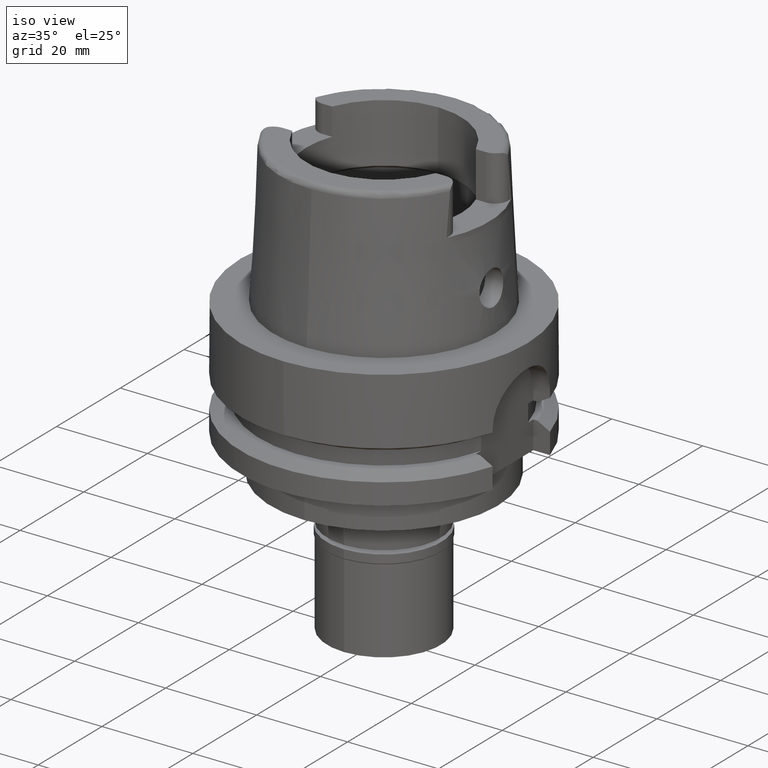
[diagram: clean part render]
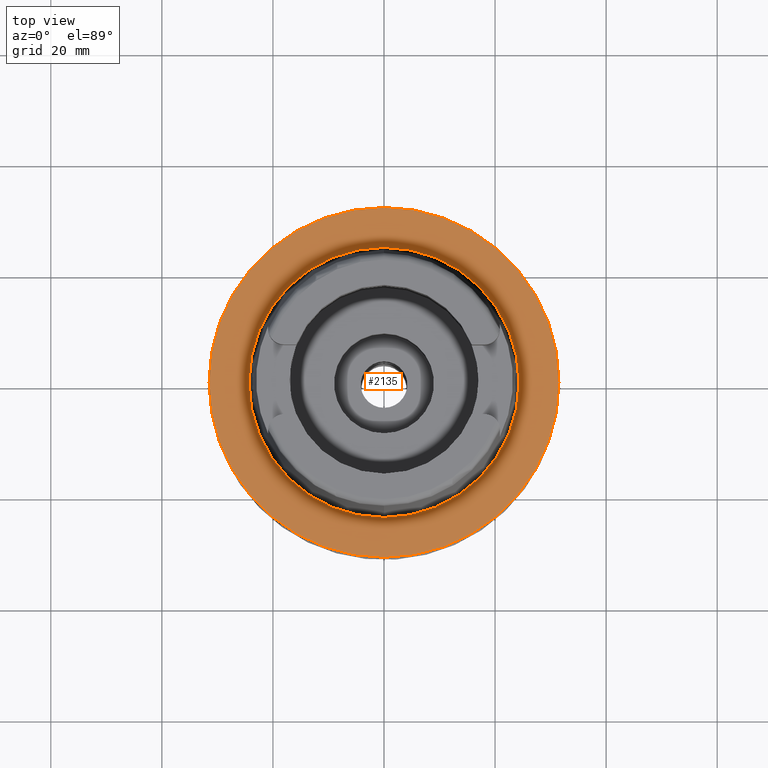
[diagram: tour spotlight — one face highlighted and labeled with its STEP entity id]
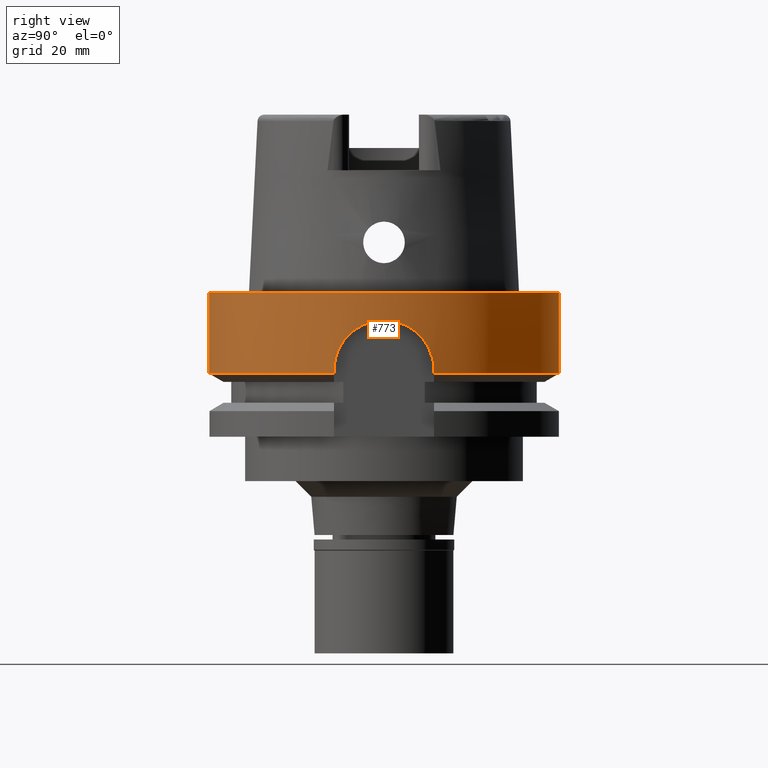
[diagram: tour spotlight — one face highlighted and labeled with its STEP entity id]
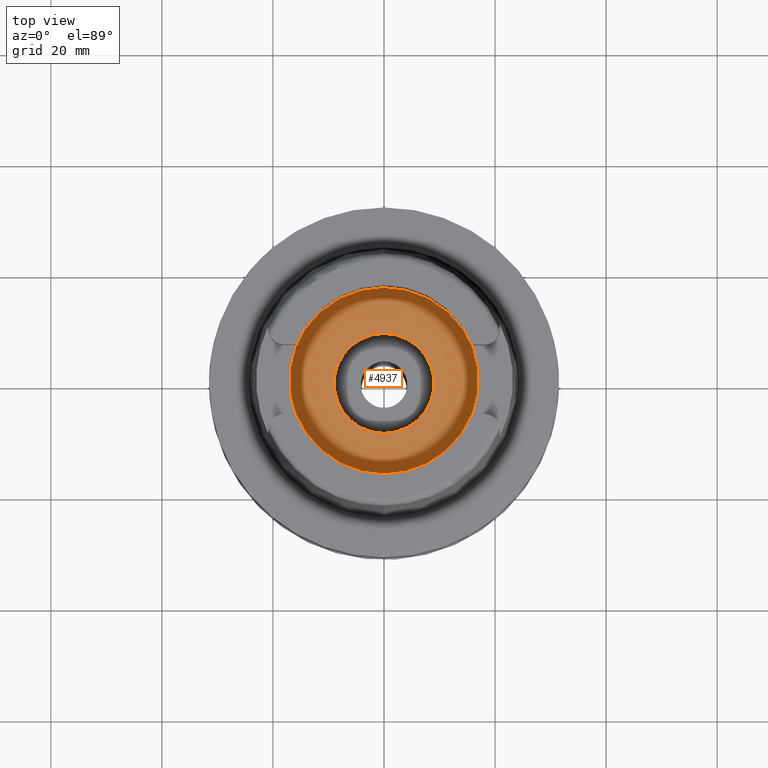
[diagram: tour spotlight — one face highlighted and labeled with its STEP entity id]
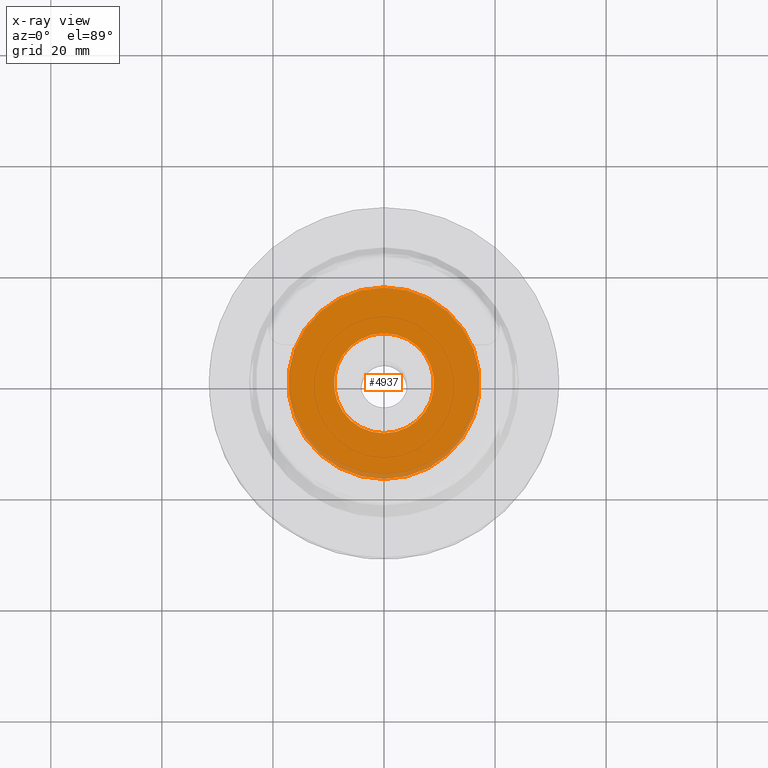
[diagram: x-ray of the same camera — body ghosted, this tour face saturated]
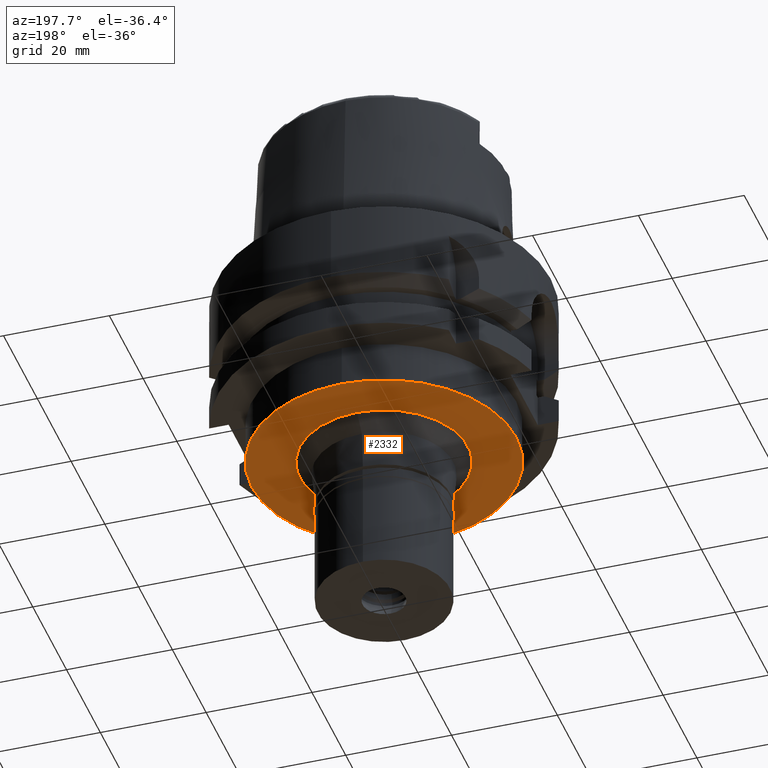
[diagram: tour spotlight — one face highlighted and labeled with its STEP entity id]
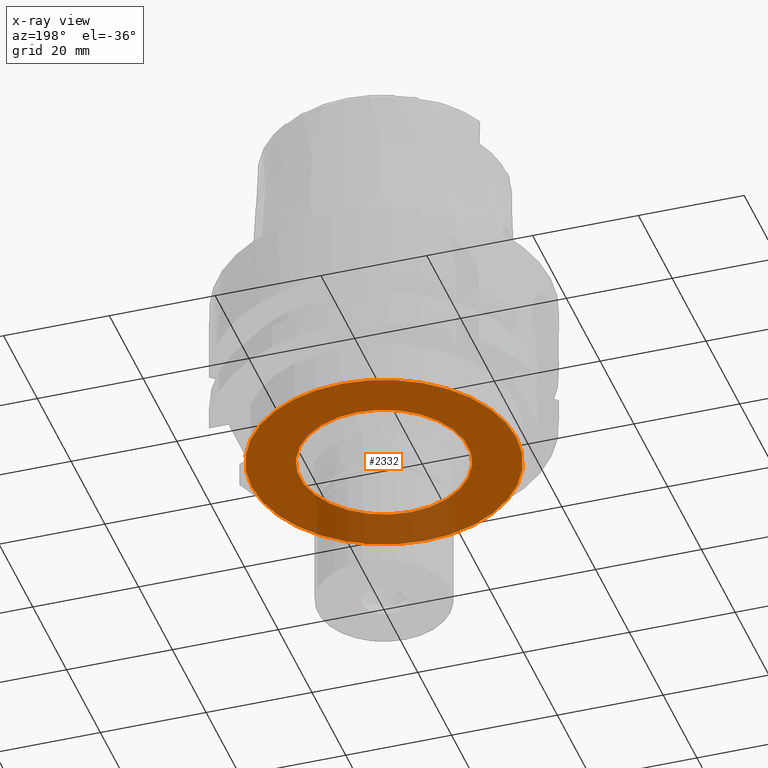
[diagram: x-ray of the same camera — body ghosted, this tour face saturated]
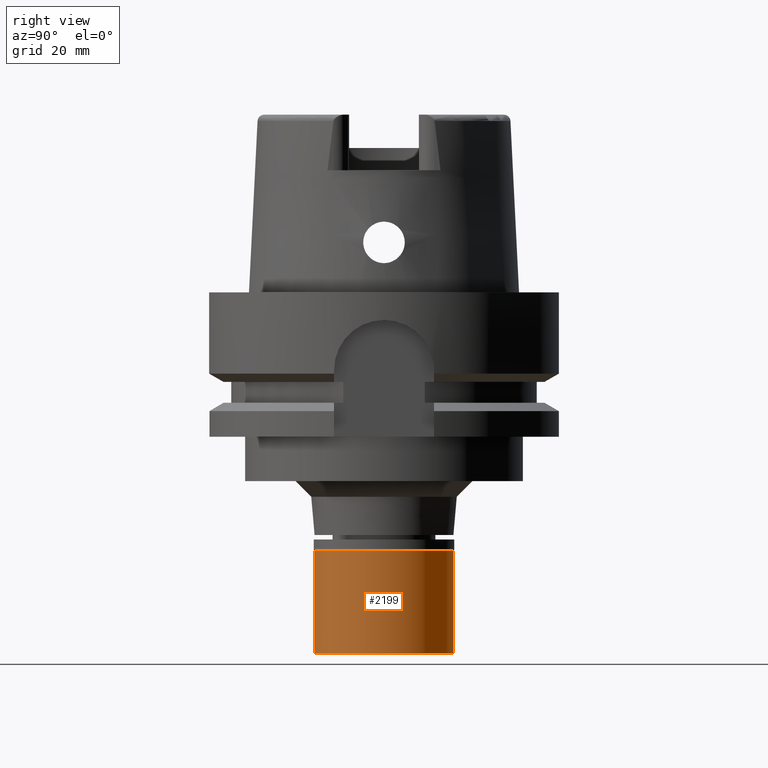
[diagram: tour spotlight — one face highlighted and labeled with its STEP entity id]
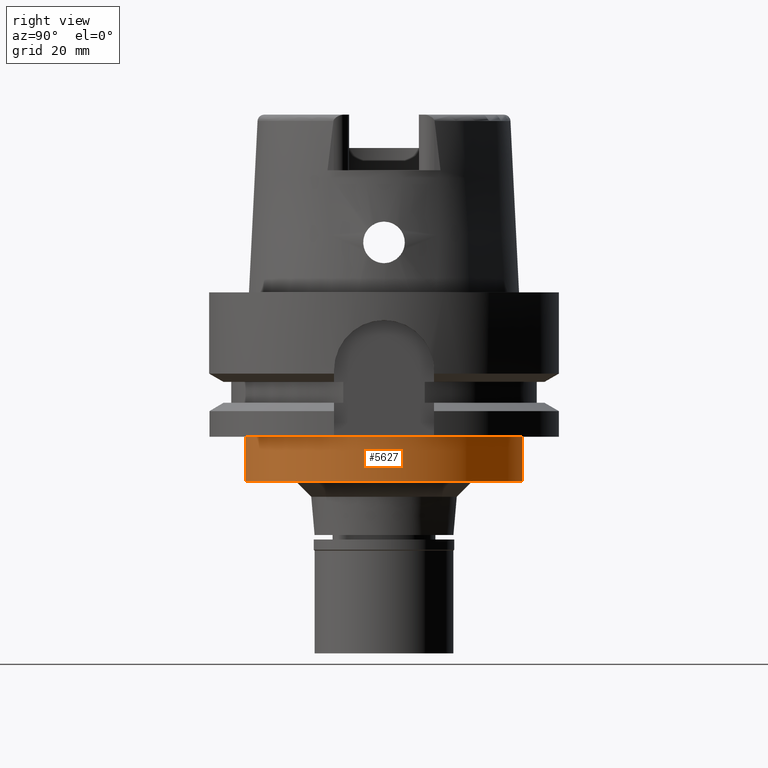
[diagram: tour spotlight — one face highlighted and labeled with its STEP entity id]
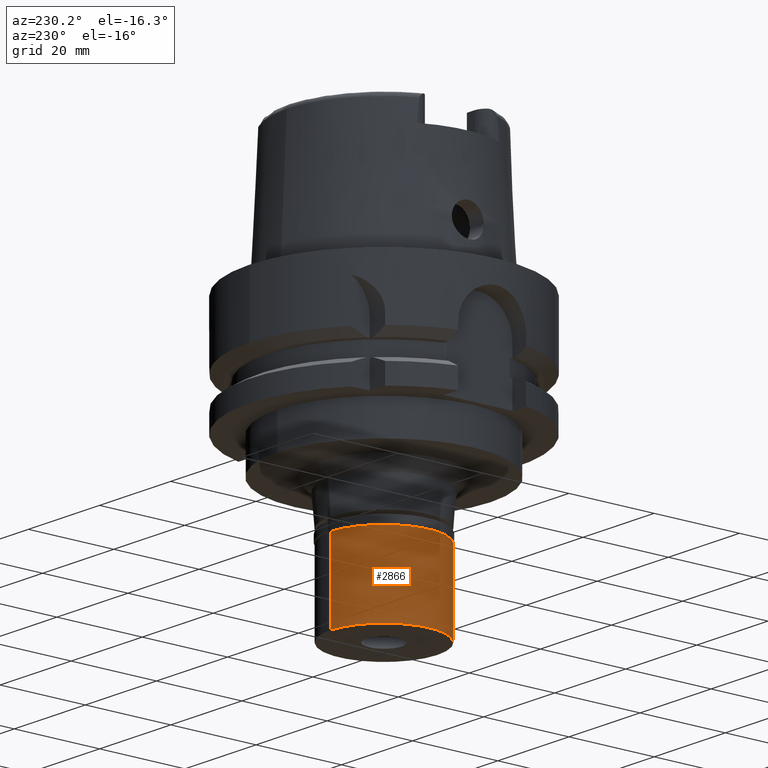
[diagram: tour spotlight — one face highlighted and labeled with its STEP entity id]
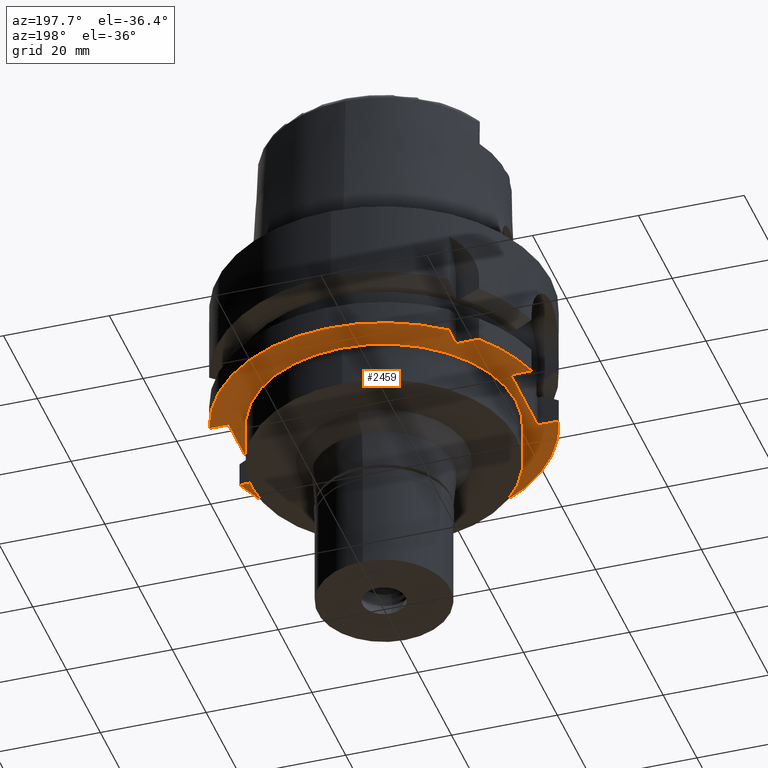
[diagram: tour spotlight — one face highlighted and labeled with its STEP entity id]
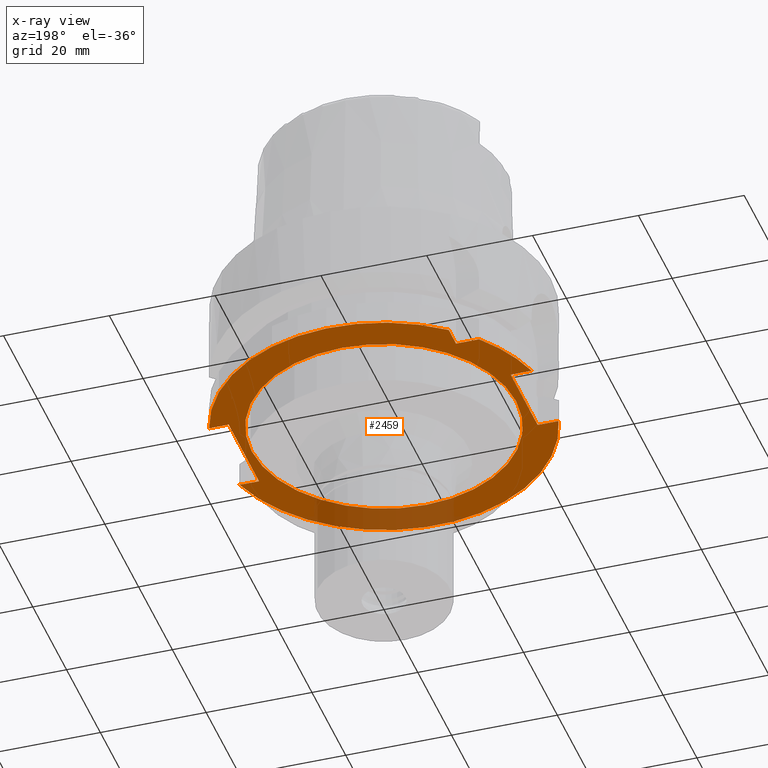
[diagram: x-ray of the same camera — body ghosted, this tour face saturated]
A machine part: a face-by-face anatomy tour. The part has 126 B-rep faces; the first image is the clean iso view, then the 8 largest visible faces are spotlighted one at a time (largest first), each with its STEP entity span.

Face 1 — top view, entity #2135. In plain terms, the highlighted planar face has unit normal (0, 0, 1).
Definition (entity closure, byte-faithful):
#98 = DIRECTION ( 'NONE',  ( 0.0000000000000000000, -1.000000000000000000, 0.0000000000000000000 ) ) ;
#140 = EDGE_CURVE ( 'NONE', #5423, #2358, #3981, .T. ) ;
#178 = CARTESIAN_POINT ( 'NONE',  ( 0.0000000000000000000, 31.50000000000000000, 0.0000000000000000000 ) ) ;
#748 = AXIS2_PLACEMENT_3D ( 'NONE', #3094, #3061, #3524 ) ;
#884 = ORIENTED_EDGE ( 'NONE', *, *, #4067, .F. ) ;
#928 = DIRECTION ( 'NONE',  ( 0.0000000000000000000, 0.0000000000000000000, 1.000000000000000000 ) ) ;
#1220 = ORIENTED_EDGE ( 'NONE', *, *, #140, .F. ) ;
#1385 = AXIS2_PLACEMENT_3D ( 'NONE', #4356, #2177, #3911 ) ;
#1595 = EDGE_CURVE ( 'NONE', #2007, #4152, #5279, .T. ) ;
#1746 = CIRCLE ( 'NONE', #1385, 24.31503482328999866 ) ;
#2007 = VERTEX_POINT ( 'NONE', #3166 ) ;
#2070 = EDGE_LOOP ( 'NONE', ( #4677, #884 ) ) ;
#2135 = ADVANCED_FACE ( 'NONE', ( #4897, #5300 ), #3132, .T. ) ;
#2177 = DIRECTION ( 'NONE',  ( 0.0000000000000000000, 0.0000000000000000000, 1.000000000000000000 ) ) ;
#2180 = CARTESIAN_POINT ( 'NONE',  ( 0.0000000000000000000, 0.0000000000000000000, 0.0000000000000000000 ) ) ;
#2358 = VERTEX_POINT ( 'NONE', #178 ) ;
#2521 = EDGE_LOOP ( 'NONE', ( #3995, #1220 ) ) ;
#2675 = DIRECTION ( 'NONE',  ( 1.000000000000000000, 0.0000000000000000000, 0.0000000000000000000 ) ) ;
#2698 = CARTESIAN_POINT ( 'NONE',  ( 0.0000000000000000000, 0.0000000000000000000, 0.0000000000000000000 ) ) ;
#2771 = CARTESIAN_POINT ( 'NONE',  ( 0.0000000000000000000, -31.50000000000000000, 0.0000000000000000000 ) ) ;
#3061 = DIRECTION ( 'NONE',  ( 0.0000000000000000000, 0.0000000000000000000, -1.000000000000000000 ) ) ;
#3094 = CARTESIAN_POINT ( 'NONE',  ( 0.0000000000000000000, 0.0000000000000000000, 0.0000000000000000000 ) ) ;
#3132 = PLANE ( 'NONE',  #4549 ) ;
#3166 = CARTESIAN_POINT ( 'NONE',  ( 0.0000000000000000000, 24.31503482328999866, -1.705302565823999926E-12 ) ) ;
#3315 = DIRECTION ( 'NONE',  ( 0.0000000000000000000, 0.0000000000000000000, 1.000000000000000000 ) ) ;
#3524 = DIRECTION ( 'NONE',  ( 0.0000000000000000000, 1.000000000000000000, 0.0000000000000000000 ) ) ;
#3911 = DIRECTION ( 'NONE',  ( 0.0000000000000000000, -1.000000000000000000, 0.0000000000000000000 ) ) ;
#3981 = CIRCLE ( 'NONE', #5178, 31.50000000000000000 ) ;
#3995 = ORIENTED_EDGE ( 'NONE', *, *, #5172, .F. ) ;
#4067 = EDGE_CURVE ( 'NONE', #4152, #2007, #1746, .T. ) ;
#4152 = VERTEX_POINT ( 'NONE', #4655 ) ;
#4356 = CARTESIAN_POINT ( 'NONE',  ( 0.0000000000000000000, 0.0000000000000000000, -1.705302565823999926E-12 ) ) ;
#4405 = CIRCLE ( 'NONE', #748, 31.50000000000000000 ) ;
#4422 = DIRECTION ( 'NONE',  ( 0.0000000000000000000, 0.0000000000000000000, -1.000000000000000000 ) ) ;
#4549 = AXIS2_PLACEMENT_3D ( 'NONE', #2180, #928, #2675 ) ;
#4655 = CARTESIAN_POINT ( 'NONE',  ( 0.0000000000000000000, -24.31503482328999866, -9.841016890276999833E-13 ) ) ;
#4677 = ORIENTED_EDGE ( 'NONE', *, *, #1595, .F. ) ;
#4813 = AXIS2_PLACEMENT_3D ( 'NONE', #5451, #3315, #5051 ) ;
#4897 = FACE_OUTER_BOUND ( 'NONE', #2521, .T. ) ;
#5051 = DIRECTION ( 'NONE',  ( 0.0000000000000000000, 1.000000000000000000, 0.0000000000000000000 ) ) ;
#5172 = EDGE_CURVE ( 'NONE', #2358, #5423, #4405, .T. ) ;
#5178 = AXIS2_PLACEMENT_3D ( 'NONE', #2698, #4422, #98 ) ;
#5279 = CIRCLE ( 'NONE', #4813, 24.31503482328999866 ) ;
#5300 = FACE_BOUND ( 'NONE', #2070, .T. ) ;
#5423 = VERTEX_POINT ( 'NONE', #2771 ) ;
#5451 = CARTESIAN_POINT ( 'NONE',  ( 0.0000000000000000000, 0.0000000000000000000, -1.705302565823999926E-12 ) ) ;

Face 2 — right view, entity #773. In plain terms, the highlighted cylindrical surface (partial cylindrical patch) has radius 31.5 mm, axis along (0, 0, 1).
Definition (entity closure, byte-faithful):
#51 = EDGE_CURVE ( 'NONE', #5423, #676, #3780, .T. ) ;
#66 = CARTESIAN_POINT ( 'NONE',  ( 30.25249515276557233, -8.777240887538876990, -11.98853176838600021 ) ) ;
#115 = CIRCLE ( 'NONE', #5496, 31.49999999999999645 ) ;
#123 = CARTESIAN_POINT ( 'NONE',  ( 30.44277093394650890, -8.093711098187098330, -10.05264505668519170 ) ) ;
#147 = CARTESIAN_POINT ( 'NONE',  ( 30.93703797203314920, -5.933365912211916005, -7.226046771285678183 ) ) ;
#170 = CARTESIAN_POINT ( 'NONE',  ( 31.28390414570561617, -3.685865822915727730, -5.788010101827337550 ) ) ;
#178 = CARTESIAN_POINT ( 'NONE',  ( 0.0000000000000000000, 31.50000000000000000, 0.0000000000000000000 ) ) ;
#228 = CARTESIAN_POINT ( 'NONE',  ( 31.49999031882314071, 0.2924209201258713420, -5.000032043093906253 ) ) ;
#255 = CARTESIAN_POINT ( 'NONE',  ( 31.02183776959406813, -5.469047411990464624, -6.850635129308150439 ) ) ;
#285 = CARTESIAN_POINT ( 'NONE',  ( 31.41601185216275027, -2.303148286028971370, -5.298373050690504904 ) ) ;
#322 = CARTESIAN_POINT ( 'NONE',  ( 0.0000000000000000000, 0.0000000000000000000, 0.0000000000000000000 ) ) ;
#372 = CIRCLE ( 'NONE', #3568, 31.50000000000000000 ) ;
#393 = ORIENTED_EDGE ( 'NONE', *, *, #5140, .F. ) ;
#495 = CARTESIAN_POINT ( 'NONE',  ( 30.51502207986537485, -7.816897654631546288, -9.529419929135917400 ) ) ;
#546 = CARTESIAN_POINT ( 'NONE',  ( 30.22789393550344528, -8.861449281322510529, -12.42008031656575895 ) ) ;
#630 = CARTESIAN_POINT ( 'NONE',  ( 31.48385943919376118, -1.159642441361203868, -5.055989086221604367 ) ) ;
#661 = CARTESIAN_POINT ( 'NONE',  ( 30.63409167175415959, 7.336974084880786506, -8.779144811426112582 ) ) ;
#676 = VERTEX_POINT ( 'NONE', #1768 ) ;
#692 = CARTESIAN_POINT ( 'NONE',  ( 31.43637088383653833, 2.021858381996302523, -5.225135461056388486 ) ) ;
#700 = CARTESIAN_POINT ( 'NONE',  ( 0.0000000000000000000, 31.50000000000000000, -14.62250092523999889 ) ) ;
#745 = CARTESIAN_POINT ( 'NONE',  ( 30.20358588159592728, 8.944650085524850525, -12.84689954984622418 ) ) ;
#748 = AXIS2_PLACEMENT_3D ( 'NONE', #3094, #3061, #3524 ) ;
#773 = ADVANCED_FACE ( 'NONE', ( #4553 ), #1541, .T. ) ;
#821 = VERTEX_POINT ( 'NONE', #700 ) ;
#852 = CARTESIAN_POINT ( 'NONE',  ( 30.18691774160000207, -8.999999847884000204, -14.62250215209000004 ) ) ;
#859 = DIRECTION ( 'NONE',  ( 0.0000000000000000000, 0.0000000000000000000, 1.000000000000000000 ) ) ;
#916 = EDGE_CURVE ( 'NONE', #2358, #821, #3484, .T. ) ;
#1003 = CARTESIAN_POINT ( 'NONE',  ( 30.36287848479640417, -8.387431033257811919, -10.73303656614183055 ) ) ;
#1088 = CARTESIAN_POINT ( 'NONE',  ( 30.39331615734052150, 8.276452089464752859, -10.46137309869471643 ) ) ;
#1114 = CARTESIAN_POINT ( 'NONE',  ( 31.18025461402595511, 4.478645084921190289, -6.191965538190022933 ) ) ;
#1128 = DIRECTION ( 'NONE',  ( 0.0000000000000000000, 1.000000000000000000, 0.0000000000000000000 ) ) ;
#1144 = CARTESIAN_POINT ( 'NONE',  ( 31.12350949108028075, 4.857283257646015429, -6.421775784377845575 ) ) ;
#1170 = CARTESIAN_POINT ( 'NONE',  ( 30.51477324968973903, 7.817868019922316059, -9.531127757740986084 ) ) ;
#1263 = EDGE_CURVE ( 'NONE', #4836, #2155, #2207, .T. ) ;
#1266 = CARTESIAN_POINT ( 'NONE',  ( 30.18691748976999989, 9.000000692560000459, -14.62249533948000035 ) ) ;
#1346 = CARTESIAN_POINT ( 'NONE',  ( 30.30845943766313866, -8.581909905088449975, -11.28448540524063226 ) ) ;
#1428 = CARTESIAN_POINT ( 'NONE',  ( 30.19106359658162475, -8.986129158879446521, -13.42175932015210904 ) ) ;
#1480 = CARTESIAN_POINT ( 'NONE',  ( 30.25335232716835421, 8.774166223245282836, -11.99103338167119048 ) ) ;
#1505 = CARTESIAN_POINT ( 'NONE',  ( 31.40534033409474191, -2.444248811211464201, -5.336929326611277169 ) ) ;
#1532 = CARTESIAN_POINT ( 'NONE',  ( 30.18691769624741283, 8.999999999999173994, -13.42098225219706187 ) ) ;
#1541 = CYLINDRICAL_SURFACE ( 'NONE', #2625, 31.50000000000000000 ) ;
#1558 = CARTESIAN_POINT ( 'NONE',  ( 30.76206231610069608, 6.781080098940710066, -8.074795456596593368 ) ) ;
#1588 = CARTESIAN_POINT ( 'NONE',  ( 31.25112480613034904, -3.954170433087017322, -5.913719207586415116 ) ) ;
#1700 = EDGE_CURVE ( 'NONE', #4836, #3618, #4278, .T. ) ;
#1768 = CARTESIAN_POINT ( 'NONE',  ( 0.0000000000000000000, -31.50000000000000000, -14.62250092523999889 ) ) ;
#1771 = CARTESIAN_POINT ( 'NONE',  ( 30.27274335888150247, -8.707386171601834590, -11.70463304055471632 ) ) ;
#1857 = CARTESIAN_POINT ( 'NONE',  ( 30.55336174551282724, -7.666235764790007678, -9.275699644763086837 ) ) ;
#1903 = CARTESIAN_POINT ( 'NONE',  ( 30.44314436664233270, 8.091301881717214428, -10.05609797414312823 ) ) ;
#1937 = CARTESIAN_POINT ( 'NONE',  ( 30.80575863710858187, 6.580448024904547388, -7.852802294254276561 ) ) ;
#1964 = DIRECTION ( 'NONE',  ( 0.9583148474999051425, 0.2857142857143015191, 0.0000000000000000000 ) ) ;
#1965 = CARTESIAN_POINT ( 'NONE',  ( 31.25150562833175982, 3.957645130711756387, -5.911338288659397477 ) ) ;
#1993 = CARTESIAN_POINT ( 'NONE',  ( 31.02333757501357425, 5.482629359049226991, -6.837517695553620101 ) ) ;
#2024 = CARTESIAN_POINT ( 'NONE',  ( 31.50001931037873959, -0.5817076307575149707, -4.999936095724175189 ) ) ;
#2155 = VERTEX_POINT ( 'NONE', #2238 ) ;
#2207 = B_SPLINE_CURVE_WITH_KNOTS ( 'NONE', 3,
 ( #5294, #2255, #1428, #2718, #4469, #3205, #546, #66, #1771, #1346, #5348, #3604, #1003, #4026, #123, #495, #1857, #2743, #4494, #4052, #147, #2476, #255, #5402, #2444, #4601, #2910, #5490, #1588, #170, #2391, #4975, #3232, #1505, #285, #4136, #2796, #630, #2024, #228, #5430, #4571, #4160, #2360, #692, #4658, #2415, #3771, #3257, #2822, #4546, #1965, #5057, #1114, #4192, #1144, #1993, #3347, #1937, #1558, #3290, #661, #5084, #1170, #4102, #1903, #5002, #1088, #3709, #5460, #5516, #3740, #1480, #3655, #745, #1532, #2880 ),
 .UNSPECIFIED., .F., .F.,
 ( 4, 2, 2, 2, 2, 2, 2, 2, 2, 2, 2, 2, 2, 2, 2, 2, 2, 2, 2, 2, 1, 2, 2, 2, 2, 2, 2, 2, 2, 2, 2, 2, 2, 2, 2, 2, 2, 2, 4 ),
 ( 0.0000000000000000000, 0.03125000000000011102, 0.04687500000000026368, 0.06250000000000041633, 0.09375000000000049960, 0.1093750000000004580, 0.1250000000000004163, 0.1562500000000004996, 0.1875000000000005829, 0.2500000000000006106, 0.2812500000000006106, 0.2968750000000006661, 0.3125000000000007216, 0.3437500000000007772, 0.3593750000000008327, 0.3750000000000008882, 0.4062500000000008882, 0.4218750000000008882, 0.4375000000000008882, 0.5000000000000008882, 0.5312500000000009992, 0.5468750000000009992, 0.5625000000000011102, 0.5937500000000012212, 0.6093750000000012212, 0.6250000000000013323, 0.6562500000000013323, 0.6718750000000012212, 0.6875000000000012212, 0.7500000000000011102, 0.7812500000000011102, 0.8125000000000011102, 0.8437500000000011102, 0.8593750000000009992, 0.8750000000000009992, 0.9062500000000006661, 0.9218750000000005551, 0.9375000000000005551, 1.000000000000000000 ),
 .UNSPECIFIED. ) ;
#2238 = CARTESIAN_POINT ( 'NONE',  ( 30.18691769625000276, 9.000000000000000000, -14.00000000000000000 ) ) ;
#2255 = CARTESIAN_POINT ( 'NONE',  ( 30.18691769624740928, -8.999999999999156231, -13.71027116896219411 ) ) ;
#2358 = VERTEX_POINT ( 'NONE', #178 ) ;
#2360 = CARTESIAN_POINT ( 'NONE',  ( 31.46020107462085846, 1.589521865268832101, -5.140256938793552166 ) ) ;
#2387 = ORIENTED_EDGE ( 'NONE', *, *, #1263, .T. ) ;
#2391 = CARTESIAN_POINT ( 'NONE',  ( 31.29981061360341599, -3.548316942432464316, -5.727703354190274432 ) ) ;
#2415 = CARTESIAN_POINT ( 'NONE',  ( 31.38211755306803852, 2.726251596917056652, -5.421492319191001386 ) ) ;
#2443 = DIRECTION ( 'NONE',  ( 0.0000000000000000000, 0.0000000000000000000, 1.000000000000000000 ) ) ;
#2444 = CARTESIAN_POINT ( 'NONE',  ( 31.08392352818422211, -5.104449976060206673, -6.586058333061502346 ) ) ;
#2451 = DIRECTION ( 'NONE',  ( 3.317004688203084648E-07, -1.112554198167030054E-06, 0.9999999999993260946 ) ) ;
#2458 = ORIENTED_EDGE ( 'NONE', *, *, #1700, .F. ) ;
#2476 = CARTESIAN_POINT ( 'NONE',  ( 31.00080700024316016, -5.586926947480111316, -6.942343810787217961 ) ) ;
#2530 = CARTESIAN_POINT ( 'NONE',  ( 30.18691769625000276, -9.000000000000000000, -14.00000000000000000 ) ) ;
#2625 = AXIS2_PLACEMENT_3D ( 'NONE', #322, #5437, #1128 ) ;
#2705 = DIRECTION ( 'NONE',  ( 0.0000000000000000000, 2.672583210395999918E-14, -1.000000000000000000 ) ) ;
#2718 = CARTESIAN_POINT ( 'NONE',  ( 30.20341519481771542, -8.944491050790947639, -12.99081702027856444 ) ) ;
#2743 = CARTESIAN_POINT ( 'NONE',  ( 30.67518755757016180, -7.169324049165367363, -8.526495340278835045 ) ) ;
#2771 = CARTESIAN_POINT ( 'NONE',  ( 0.0000000000000000000, -31.50000000000000000, 0.0000000000000000000 ) ) ;
#2796 = CARTESIAN_POINT ( 'NONE',  ( 31.44449437632012589, -1.874642473577499135, -5.196201554989810845 ) ) ;
#2801 = VECTOR ( 'NONE', #4650, 1000.000000000000000 ) ;
#2822 = CARTESIAN_POINT ( 'NONE',  ( 31.32942584899626226, 3.276618679189740480, -5.616325855335427164 ) ) ;
#2856 = CARTESIAN_POINT ( 'NONE',  ( 30.18691748976999989, 9.000000692560000459, -14.62249533948000035 ) ) ;
#2880 = CARTESIAN_POINT ( 'NONE',  ( 30.18691769625000276, 9.000000000000000000, -14.00000000000000000 ) ) ;
#2910 = CARTESIAN_POINT ( 'NONE',  ( 31.18110025080350312, -4.478678177980619068, -6.187759753859559453 ) ) ;
#3050 = ORIENTED_EDGE ( 'NONE', *, *, #916, .F. ) ;
#3061 = DIRECTION ( 'NONE',  ( 0.0000000000000000000, 0.0000000000000000000, -1.000000000000000000 ) ) ;
#3094 = CARTESIAN_POINT ( 'NONE',  ( 0.0000000000000000000, 0.0000000000000000000, 0.0000000000000000000 ) ) ;
#3205 = CARTESIAN_POINT ( 'NONE',  ( 30.22083254316908452, -8.885479839110491440, -12.56139594818968241 ) ) ;
#3232 = CARTESIAN_POINT ( 'NONE',  ( 31.37074780669966856, -2.864471513936539537, -5.462888631900190362 ) ) ;
#3257 = CARTESIAN_POINT ( 'NONE',  ( 31.34328433854437179, 3.141296993690902095, -5.564694286714754412 ) ) ;
#3268 = DIRECTION ( 'NONE',  ( 0.0000000000000000000, -2.672583210395999918E-14, -1.000000000000000000 ) ) ;
#3290 = CARTESIAN_POINT ( 'NONE',  ( 30.67633611959002593, 7.158905469822100187, -8.537306881324651542 ) ) ;
#3347 = CARTESIAN_POINT ( 'NONE',  ( 30.93732522714098820, 5.943076093669481530, -7.214610457292459422 ) ) ;
#3433 = EDGE_CURVE ( 'NONE', #676, #3618, #372, .T. ) ;
#3484 = LINE ( 'NONE', #4815, #4259 ) ;
#3524 = DIRECTION ( 'NONE',  ( 0.0000000000000000000, 1.000000000000000000, 0.0000000000000000000 ) ) ;
#3568 = AXIS2_PLACEMENT_3D ( 'NONE', #4738, #859, #4316 ) ;
#3575 = ORIENTED_EDGE ( 'NONE', *, *, #5593, .T. ) ;
#3604 = CARTESIAN_POINT ( 'NONE',  ( 30.34852748415920232, -8.439161142957544826, -10.86908815028724540 ) ) ;
#3618 = VERTEX_POINT ( 'NONE', #852 ) ;
#3655 = CARTESIAN_POINT ( 'NONE',  ( 30.24411151958536692, 8.805938548479506522, -12.13546497872282259 ) ) ;
#3709 = CARTESIAN_POINT ( 'NONE',  ( 30.34755049272595429, 8.443310014946431963, -10.86995471604406127 ) ) ;
#3740 = CARTESIAN_POINT ( 'NONE',  ( 30.27351147064785408, 8.704356563323548457, -11.70718102367021807 ) ) ;
#3771 = CARTESIAN_POINT ( 'NONE',  ( 31.36972017036094584, 2.865288181433435888, -5.466939114433783331 ) ) ;
#3780 = LINE ( 'NONE', #5502, #4361 ) ;
#3962 = EDGE_LOOP ( 'NONE', ( #393, #3575, #3050, #5411, #4352, #4640, #2458, #2387 ) ) ;
#4026 = CARTESIAN_POINT ( 'NONE',  ( 30.40907111538118457, -8.218999378291927727, -10.32084764546483946 ) ) ;
#4052 = CARTESIAN_POINT ( 'NONE',  ( 30.89362624915437650, -6.154724735004179159, -7.426617966366334755 ) ) ;
#4102 = CARTESIAN_POINT ( 'NONE',  ( 30.46059799066880558, 8.025402280576924952, -9.923618011497648439 ) ) ;
#4136 = CARTESIAN_POINT ( 'NONE',  ( 31.43555752727419161, -2.018914478649930899, -5.228120817200035297 ) ) ;
#4160 = CARTESIAN_POINT ( 'NONE',  ( 31.46706413555890691, 1.447260997118646975, -5.115905977037804142 ) ) ;
#4192 = CARTESIAN_POINT ( 'NONE',  ( 31.14264547057256038, 4.733093352808825927, -6.343595145567661575 ) ) ;
#4259 = VECTOR ( 'NONE', #2705, 1000.000000000000000 ) ;
#4278 = LINE ( 'NONE', #2530, #2801 ) ;
#4316 = DIRECTION ( 'NONE',  ( 0.0000000000000000000, -1.000000000000000000, 0.0000000000000000000 ) ) ;
#4352 = ORIENTED_EDGE ( 'NONE', *, *, #51, .T. ) ;
#4361 = VECTOR ( 'NONE', #3268, 1000.000000000000000 ) ;
#4405 = CIRCLE ( 'NONE', #748, 31.50000000000000000 ) ;
#4469 = CARTESIAN_POINT ( 'NONE',  ( 30.20855272534222635, -8.927139172978366233, -12.84747383254432407 ) ) ;
#4494 = CARTESIAN_POINT ( 'NONE',  ( 30.76248422660142268, -6.790190111664749395, -8.062639215853344865 ) ) ;
#4546 = CARTESIAN_POINT ( 'NONE',  ( 31.28442408605212322, 3.689366556784723805, -5.785573784395644736 ) ) ;
#4553 = FACE_OUTER_BOUND ( 'NONE', #3962, .T. ) ;
#4571 = CARTESIAN_POINT ( 'NONE',  ( 31.47896895017571950, 1.159829099062163360, -5.073784538538467004 ) ) ;
#4573 = VECTOR ( 'NONE', #2451, 1000.000000000000114 ) ;
#4601 = CARTESIAN_POINT ( 'NONE',  ( 31.14338118513676434, -4.733144220673313640, -6.339322956481485249 ) ) ;
#4640 = ORIENTED_EDGE ( 'NONE', *, *, #3433, .T. ) ;
#4650 = DIRECTION ( 'NONE',  ( 7.285354395319762991E-08, 2.443610998911921252E-07, -0.9999999999999674705 ) ) ;
#4658 = CARTESIAN_POINT ( 'NONE',  ( 31.41673170553607619, 2.306072088955192445, -5.295444306155748571 ) ) ;
#4738 = CARTESIAN_POINT ( 'NONE',  ( 0.0000000000000000000, 0.0000000000000000000, -14.62250092523999889 ) ) ;
#4815 = CARTESIAN_POINT ( 'NONE',  ( 0.0000000000000000000, 31.50000000000000000, 0.0000000000000000000 ) ) ;
#4836 = VERTEX_POINT ( 'NONE', #4953 ) ;
#4953 = CARTESIAN_POINT ( 'NONE',  ( 30.18691769625000276, -9.000000000000000000, -14.00000000000000000 ) ) ;
#4975 = CARTESIAN_POINT ( 'NONE',  ( 31.34424928005388011, -3.140513868050762714, -5.560582138794940121 ) ) ;
#5002 = CARTESIAN_POINT ( 'NONE',  ( 30.40957265881287697, 8.216574455190459148, -10.32435765555393026 ) ) ;
#5056 = CARTESIAN_POINT ( 'NONE',  ( 0.0000000000000000000, 0.0000000000000000000, -14.62250092523999889 ) ) ;
#5057 = CARTESIAN_POINT ( 'NONE',  ( 31.19851880259072630, 4.349691285478474612, -6.119383872390439016 ) ) ;
#5084 = CARTESIAN_POINT ( 'NONE',  ( 30.55331565968570118, 7.666398337893370218, -9.276067100809569865 ) ) ;
#5119 = LINE ( 'NONE', #2856, #4573 ) ;
#5140 = EDGE_CURVE ( 'NONE', #5219, #2155, #5119, .T. ) ;
#5172 = EDGE_CURVE ( 'NONE', #2358, #5423, #4405, .T. ) ;
#5219 = VERTEX_POINT ( 'NONE', #1266 ) ;
#5294 = CARTESIAN_POINT ( 'NONE',  ( 30.18691769625000276, -9.000000000000000000, -14.00000000000000000 ) ) ;
#5348 = CARTESIAN_POINT ( 'NONE',  ( 30.32125366942894118, -8.536635002605725830, -11.14538626954141343 ) ) ;
#5402 = CARTESIAN_POINT ( 'NONE',  ( 31.06328920365621116, -5.228476073162044990, -6.672935710390861530 ) ) ;
#5411 = ORIENTED_EDGE ( 'NONE', *, *, #5172, .T. ) ;
#5423 = VERTEX_POINT ( 'NONE', #2771 ) ;
#5430 = CARTESIAN_POINT ( 'NONE',  ( 31.49391132537047966, 0.7276353566619454538, -5.021124744800149919 ) ) ;
#5437 = DIRECTION ( 'NONE',  ( 0.0000000000000000000, 0.0000000000000000000, 1.000000000000000000 ) ) ;
#5460 = CARTESIAN_POINT ( 'NONE',  ( 30.32020204386826379, 8.540661447241237880, -11.14616399864410567 ) ) ;
#5490 = CARTESIAN_POINT ( 'NONE',  ( 31.23407006720384516, -4.086595135946910595, -5.979805522573808929 ) ) ;
#5496 = AXIS2_PLACEMENT_3D ( 'NONE', #5056, #2443, #1964 ) ;
#5502 = CARTESIAN_POINT ( 'NONE',  ( 0.0000000000000000000, -31.50000000000000000, 0.0000000000000000000 ) ) ;
#5516 = CARTESIAN_POINT ( 'NONE',  ( 30.28451810374219022, 8.666017003702322086, -11.56621022909485141 ) ) ;
#5593 = EDGE_CURVE ( 'NONE', #5219, #821, #115, .T. ) ;

Face 3 — top view, entity #4937. An x-ray twin of the same camera follows (body ghosted, this face saturated) — the face is partly hidden behind the body. In plain terms, the highlighted planar face has unit normal (0, 0, 1).
Definition (entity closure, byte-faithful):
#182 = EDGE_LOOP ( 'NONE', ( #4858, #3870 ) ) ;
#202 = FACE_OUTER_BOUND ( 'NONE', #182, .T. ) ;
#208 = DIRECTION ( 'NONE',  ( 0.0000000000000000000, -1.000000000000000000, 0.0000000000000000000 ) ) ;
#224 = VERTEX_POINT ( 'NONE', #1621 ) ;
#355 = ORIENTED_EDGE ( 'NONE', *, *, #4261, .F. ) ;
#361 = CARTESIAN_POINT ( 'NONE',  ( 0.0000000000000000000, -9.000000000000000000, -9.950000000000001066 ) ) ;
#477 = AXIS2_PLACEMENT_3D ( 'NONE', #4159, #2821, #5515 ) ;
#551 = AXIS2_PLACEMENT_3D ( 'NONE', #5133, #1697, #875 ) ;
#669 = DIRECTION ( 'NONE',  ( 0.0000000000000000000, 0.0000000000000000000, 1.000000000000000000 ) ) ;
#770 = EDGE_CURVE ( 'NONE', #2465, #224, #5639, .T. ) ;
#771 = DIRECTION ( 'NONE',  ( 0.0000000000000000000, 1.000000000000000000, 0.0000000000000000000 ) ) ;
#875 = DIRECTION ( 'NONE',  ( 0.0000000000000000000, -1.000000000000000000, 0.0000000000000000000 ) ) ;
#1092 = FACE_BOUND ( 'NONE', #4452, .T. ) ;
#1198 = CARTESIAN_POINT ( 'NONE',  ( 0.0000000000000000000, 0.0000000000000000000, -9.950000000000001066 ) ) ;
#1204 = CIRCLE ( 'NONE', #4491, 9.000000000000000000 ) ;
#1435 = AXIS2_PLACEMENT_3D ( 'NONE', #2487, #4611, #208 ) ;
#1621 = CARTESIAN_POINT ( 'NONE',  ( 0.0000000000000000000, 17.25000000000000000, -9.950000000000001066 ) ) ;
#1697 = DIRECTION ( 'NONE',  ( 0.0000000000000000000, 0.0000000000000000000, 1.000000000000000000 ) ) ;
#2078 = CARTESIAN_POINT ( 'NONE',  ( 0.0000000000000000000, 9.000000000000000000, -9.950000000000001066 ) ) ;
#2110 = CIRCLE ( 'NONE', #551, 9.000000000000000000 ) ;
#2465 = VERTEX_POINT ( 'NONE', #3784 ) ;
#2487 = CARTESIAN_POINT ( 'NONE',  ( 0.0000000000000000000, 0.0000000000000000000, -9.950000000000001066 ) ) ;
#2821 = DIRECTION ( 'NONE',  ( 0.0000000000000000000, 0.0000000000000000000, -1.000000000000000000 ) ) ;
#2826 = PLANE ( 'NONE',  #4022 ) ;
#3639 = VERTEX_POINT ( 'NONE', #361 ) ;
#3725 = EDGE_CURVE ( 'NONE', #3639, #4310, #2110, .T. ) ;
#3745 = DIRECTION ( 'NONE',  ( 1.000000000000000000, 0.0000000000000000000, 0.0000000000000000000 ) ) ;
#3784 = CARTESIAN_POINT ( 'NONE',  ( 0.0000000000000000000, -17.25000000000000000, -9.950000000000001066 ) ) ;
#3843 = CIRCLE ( 'NONE', #477, 17.25000000000000000 ) ;
#3870 = ORIENTED_EDGE ( 'NONE', *, *, #770, .F. ) ;
#4022 = AXIS2_PLACEMENT_3D ( 'NONE', #4580, #669, #3745 ) ;
#4159 = CARTESIAN_POINT ( 'NONE',  ( 0.0000000000000000000, 0.0000000000000000000, -9.950000000000001066 ) ) ;
#4261 = EDGE_CURVE ( 'NONE', #4310, #3639, #1204, .T. ) ;
#4310 = VERTEX_POINT ( 'NONE', #2078 ) ;
#4452 = EDGE_LOOP ( 'NONE', ( #355, #5455 ) ) ;
#4491 = AXIS2_PLACEMENT_3D ( 'NONE', #1198, #4688, #771 ) ;
#4580 = CARTESIAN_POINT ( 'NONE',  ( 0.0000000000000000000, 0.0000000000000000000, -9.950000000000001066 ) ) ;
#4611 = DIRECTION ( 'NONE',  ( 0.0000000000000000000, 0.0000000000000000000, -1.000000000000000000 ) ) ;
#4688 = DIRECTION ( 'NONE',  ( 0.0000000000000000000, 0.0000000000000000000, 1.000000000000000000 ) ) ;
#4858 = ORIENTED_EDGE ( 'NONE', *, *, #5558, .F. ) ;
#4937 = ADVANCED_FACE ( 'NONE', ( #202, #1092 ), #2826, .T. ) ;
#5133 = CARTESIAN_POINT ( 'NONE',  ( 0.0000000000000000000, 0.0000000000000000000, -9.950000000000001066 ) ) ;
#5455 = ORIENTED_EDGE ( 'NONE', *, *, #3725, .F. ) ;
#5515 = DIRECTION ( 'NONE',  ( 0.0000000000000000000, 1.000000000000000000, 0.0000000000000000000 ) ) ;
#5558 = EDGE_CURVE ( 'NONE', #224, #2465, #3843, .T. ) ;
#5639 = CIRCLE ( 'NONE', #1435, 17.25000000000000000 ) ;

Face 4 — auxiliary view, entity #2332. An x-ray twin of the same camera follows (body ghosted, this face saturated) — the face is partly hidden behind the body. In plain terms, the highlighted planar face has unit normal (0, 0, 1).
Definition (entity closure, byte-faithful):
#151 = FACE_BOUND ( 'NONE', #3086, .T. ) ;
#399 = DIRECTION ( 'NONE',  ( 0.0000000000000000000, 0.0000000000000000000, 1.000000000000000000 ) ) ;
#502 = ORIENTED_EDGE ( 'NONE', *, *, #3008, .F. ) ;
#656 = CIRCLE ( 'NONE', #1110, 25.00000000000000000 ) ;
#1011 = VERTEX_POINT ( 'NONE', #4961 ) ;
#1062 = PLANE ( 'NONE',  #3554 ) ;
#1110 = AXIS2_PLACEMENT_3D ( 'NONE', #2908, #4221, #3376 ) ;
#1210 = CARTESIAN_POINT ( 'NONE',  ( 0.0000000000000000000, 15.90367177832999879, -34.00000000000000000 ) ) ;
#1269 = ORIENTED_EDGE ( 'NONE', *, *, #4254, .F. ) ;
#1374 = CARTESIAN_POINT ( 'NONE',  ( 0.0000000000000000000, 0.0000000000000000000, -34.00000000000000000 ) ) ;
#1455 = AXIS2_PLACEMENT_3D ( 'NONE', #3494, #4801, #4437 ) ;
#1538 = DIRECTION ( 'NONE',  ( 0.0000000000000000000, 0.0000000000000000000, 1.000000000000000000 ) ) ;
#1614 = CIRCLE ( 'NONE', #3805, 25.00000000000000000 ) ;
#1705 = EDGE_CURVE ( 'NONE', #2346, #4050, #1614, .T. ) ;
#2046 = ORIENTED_EDGE ( 'NONE', *, *, #5214, .F. ) ;
#2332 = ADVANCED_FACE ( 'NONE', ( #3687, #151 ), #1062, .F. ) ;
#2346 = VERTEX_POINT ( 'NONE', #2749 ) ;
#2369 = DIRECTION ( 'NONE',  ( 1.000000000000000000, 0.0000000000000000000, 0.0000000000000000000 ) ) ;
#2749 = CARTESIAN_POINT ( 'NONE',  ( 0.0000000000000000000, -25.00000000000000000, -34.00000000000000000 ) ) ;
#2833 = EDGE_LOOP ( 'NONE', ( #1269, #4069 ) ) ;
#2908 = CARTESIAN_POINT ( 'NONE',  ( 0.0000000000000000000, 0.0000000000000000000, -34.00000000000000000 ) ) ;
#3008 = EDGE_CURVE ( 'NONE', #3989, #1011, #3916, .T. ) ;
#3086 = EDGE_LOOP ( 'NONE', ( #502, #2046 ) ) ;
#3376 = DIRECTION ( 'NONE',  ( 0.0000000000000000000, 1.000000000000000000, 0.0000000000000000000 ) ) ;
#3458 = DIRECTION ( 'NONE',  ( 0.0000000000000000000, -1.000000000000000000, 0.0000000000000000000 ) ) ;
#3494 = CARTESIAN_POINT ( 'NONE',  ( 0.0000000000000000000, 0.0000000000000000000, -34.00000000000000000 ) ) ;
#3554 = AXIS2_PLACEMENT_3D ( 'NONE', #5007, #1538, #2369 ) ;
#3687 = FACE_OUTER_BOUND ( 'NONE', #2833, .T. ) ;
#3805 = AXIS2_PLACEMENT_3D ( 'NONE', #5567, #399, #3458 ) ;
#3839 = AXIS2_PLACEMENT_3D ( 'NONE', #1374, #4354, #3909 ) ;
#3860 = CARTESIAN_POINT ( 'NONE',  ( 0.0000000000000000000, 25.00000000000000000, -34.00000000000000000 ) ) ;
#3909 = DIRECTION ( 'NONE',  ( 0.0000000000000000000, -1.000000000000000000, 0.0000000000000000000 ) ) ;
#3916 = CIRCLE ( 'NONE', #1455, 15.90367177832999879 ) ;
#3989 = VERTEX_POINT ( 'NONE', #1210 ) ;
#4050 = VERTEX_POINT ( 'NONE', #3860 ) ;
#4069 = ORIENTED_EDGE ( 'NONE', *, *, #1705, .F. ) ;
#4109 = CIRCLE ( 'NONE', #3839, 15.90367177832999879 ) ;
#4221 = DIRECTION ( 'NONE',  ( 0.0000000000000000000, 0.0000000000000000000, 1.000000000000000000 ) ) ;
#4254 = EDGE_CURVE ( 'NONE', #4050, #2346, #656, .T. ) ;
#4354 = DIRECTION ( 'NONE',  ( 0.0000000000000000000, 0.0000000000000000000, -1.000000000000000000 ) ) ;
#4437 = DIRECTION ( 'NONE',  ( 0.0000000000000000000, 1.000000000000000000, 0.0000000000000000000 ) ) ;
#4801 = DIRECTION ( 'NONE',  ( 0.0000000000000000000, 0.0000000000000000000, -1.000000000000000000 ) ) ;
#4961 = CARTESIAN_POINT ( 'NONE',  ( 0.0000000000000000000, -15.90367177832999879, -34.00000000000000000 ) ) ;
#5007 = CARTESIAN_POINT ( 'NONE',  ( 0.0000000000000000000, 0.0000000000000000000, -34.00000000000000000 ) ) ;
#5214 = EDGE_CURVE ( 'NONE', #1011, #3989, #4109, .T. ) ;
#5567 = CARTESIAN_POINT ( 'NONE',  ( 0.0000000000000000000, 0.0000000000000000000, -34.00000000000000000 ) ) ;

Face 5 — right view, entity #2199. In plain terms, the highlighted cylindrical surface (partial cylindrical patch) has radius 12.5 mm, axis along (0, 0, -1).
Definition (entity closure, byte-faithful):
#82 = CARTESIAN_POINT ( 'NONE',  ( 0.0000000000000000000, 12.50000000000000000, -2.000000000000000000 ) ) ;
#114 = ORIENTED_EDGE ( 'NONE', *, *, #1777, .F. ) ;
#331 = LINE ( 'NONE', #858, #440 ) ;
#391 = AXIS2_PLACEMENT_3D ( 'NONE', #4851, #2687, #2710 ) ;
#440 = VECTOR ( 'NONE', #1225, 1000.000000000000000 ) ;
#527 = DIRECTION ( 'NONE',  ( 0.0000000000000000000, -1.000000000000000000, 0.0000000000000000000 ) ) ;
#785 = ORIENTED_EDGE ( 'NONE', *, *, #4574, .T. ) ;
#858 = CARTESIAN_POINT ( 'NONE',  ( 0.0000000000000000000, 12.50000000000000000, -2.000000000000000000 ) ) ;
#940 = VERTEX_POINT ( 'NONE', #82 ) ;
#1187 = CARTESIAN_POINT ( 'NONE',  ( 0.0000000000000000000, -12.50000000000000000, -2.000000000000000000 ) ) ;
#1213 = VERTEX_POINT ( 'NONE', #2283 ) ;
#1225 = DIRECTION ( 'NONE',  ( 0.0000000000000000000, 0.0000000000000000000, -1.000000000000000000 ) ) ;
#1229 = ORIENTED_EDGE ( 'NONE', *, *, #3537, .T. ) ;
#1752 = FACE_OUTER_BOUND ( 'NONE', #4029, .T. ) ;
#1777 = EDGE_CURVE ( 'NONE', #940, #2573, #331, .T. ) ;
#2199 = ADVANCED_FACE ( 'NONE', ( #1752 ), #3508, .T. ) ;
#2262 = CARTESIAN_POINT ( 'NONE',  ( 0.0000000000000000000, 0.0000000000000000000, 0.0000000000000000000 ) ) ;
#2283 = CARTESIAN_POINT ( 'NONE',  ( 0.0000000000000000000, -12.50000000000000000, -2.000000000000000000 ) ) ;
#2408 = LINE ( 'NONE', #1187, #3743 ) ;
#2442 = DIRECTION ( 'NONE',  ( 0.0000000000000000000, 1.000000000000000000, 0.0000000000000000000 ) ) ;
#2474 = CARTESIAN_POINT ( 'NONE',  ( 0.0000000000000000000, 0.0000000000000000000, -2.000000000000000000 ) ) ;
#2573 = VERTEX_POINT ( 'NONE', #2896 ) ;
#2687 = DIRECTION ( 'NONE',  ( 0.0000000000000000000, 0.0000000000000000000, 1.000000000000000000 ) ) ;
#2710 = DIRECTION ( 'NONE',  ( 0.0000000000000000000, -1.000000000000000000, 0.0000000000000000000 ) ) ;
#2896 = CARTESIAN_POINT ( 'NONE',  ( 0.0000000000000000000, 12.50000000000000000, -20.50000000000000000 ) ) ;
#2997 = AXIS2_PLACEMENT_3D ( 'NONE', #2262, #3557, #527 ) ;
#3508 = CYLINDRICAL_SURFACE ( 'NONE', #2997, 12.50000000000000000 ) ;
#3537 = EDGE_CURVE ( 'NONE', #1213, #4562, #2408, .T. ) ;
#3557 = DIRECTION ( 'NONE',  ( 0.0000000000000000000, 0.0000000000000000000, -1.000000000000000000 ) ) ;
#3579 = CIRCLE ( 'NONE', #4760, 12.50000000000000000 ) ;
#3743 = VECTOR ( 'NONE', #5049, 1000.000000000000000 ) ;
#3830 = ORIENTED_EDGE ( 'NONE', *, *, #4186, .T. ) ;
#4029 = EDGE_LOOP ( 'NONE', ( #3830, #1229, #785, #114 ) ) ;
#4186 = EDGE_CURVE ( 'NONE', #940, #1213, #3579, .T. ) ;
#4412 = CIRCLE ( 'NONE', #391, 12.50000000000000000 ) ;
#4435 = CARTESIAN_POINT ( 'NONE',  ( 0.0000000000000000000, -12.50000000000000000, -20.50000000000000000 ) ) ;
#4562 = VERTEX_POINT ( 'NONE', #4435 ) ;
#4574 = EDGE_CURVE ( 'NONE', #4562, #2573, #4412, .T. ) ;
#4760 = AXIS2_PLACEMENT_3D ( 'NONE', #2474, #5054, #2442 ) ;
#4851 = CARTESIAN_POINT ( 'NONE',  ( 0.0000000000000000000, 0.0000000000000000000, -20.50000000000000000 ) ) ;
#5049 = DIRECTION ( 'NONE',  ( 0.0000000000000000000, 0.0000000000000000000, -1.000000000000000000 ) ) ;
#5054 = DIRECTION ( 'NONE',  ( 0.0000000000000000000, 0.0000000000000000000, -1.000000000000000000 ) ) ;

Face 6 — right view, entity #5627. In plain terms, the highlighted cylindrical surface (partial cylindrical patch) has radius 25 mm, axis along (0, 0, 1).
Definition (entity closure, byte-faithful):
#15 = CARTESIAN_POINT ( 'NONE',  ( 0.0000000000000000000, -25.00000000000000000, -26.00000000000000000 ) ) ;
#351 = CARTESIAN_POINT ( 'NONE',  ( 0.0000000000000000000, 0.0000000000000000000, -26.00000000000000000 ) ) ;
#376 = VECTOR ( 'NONE', #4386, 1000.000000000000000 ) ;
#399 = DIRECTION ( 'NONE',  ( 0.0000000000000000000, 0.0000000000000000000, 1.000000000000000000 ) ) ;
#402 = EDGE_LOOP ( 'NONE', ( #3894, #5581, #3631, #4458 ) ) ;
#569 = AXIS2_PLACEMENT_3D ( 'NONE', #5605, #5173, #4320 ) ;
#870 = DIRECTION ( 'NONE',  ( 0.0000000000000000000, 1.000000000000000000, 0.0000000000000000000 ) ) ;
#1300 = CARTESIAN_POINT ( 'NONE',  ( 0.0000000000000000000, 25.00000000000000000, -26.00000000000000000 ) ) ;
#1550 = AXIS2_PLACEMENT_3D ( 'NONE', #351, #3503, #870 ) ;
#1614 = CIRCLE ( 'NONE', #3805, 25.00000000000000000 ) ;
#1705 = EDGE_CURVE ( 'NONE', #2346, #4050, #1614, .T. ) ;
#2133 = EDGE_CURVE ( 'NONE', #3080, #4050, #2641, .T. ) ;
#2154 = DIRECTION ( 'NONE',  ( 0.0000000000000000000, 0.0000000000000000000, -1.000000000000000000 ) ) ;
#2266 = VERTEX_POINT ( 'NONE', #3159 ) ;
#2346 = VERTEX_POINT ( 'NONE', #2749 ) ;
#2569 = CYLINDRICAL_SURFACE ( 'NONE', #569, 25.00000000000000000 ) ;
#2641 = LINE ( 'NONE', #1300, #3375 ) ;
#2749 = CARTESIAN_POINT ( 'NONE',  ( 0.0000000000000000000, -25.00000000000000000, -34.00000000000000000 ) ) ;
#3080 = VERTEX_POINT ( 'NONE', #4886 ) ;
#3159 = CARTESIAN_POINT ( 'NONE',  ( 0.0000000000000000000, -25.00000000000000000, -26.00000000000000000 ) ) ;
#3375 = VECTOR ( 'NONE', #2154, 1000.000000000000000 ) ;
#3458 = DIRECTION ( 'NONE',  ( 0.0000000000000000000, -1.000000000000000000, 0.0000000000000000000 ) ) ;
#3503 = DIRECTION ( 'NONE',  ( 0.0000000000000000000, 0.0000000000000000000, -1.000000000000000000 ) ) ;
#3631 = ORIENTED_EDGE ( 'NONE', *, *, #1705, .T. ) ;
#3805 = AXIS2_PLACEMENT_3D ( 'NONE', #5567, #399, #3458 ) ;
#3851 = FACE_OUTER_BOUND ( 'NONE', #402, .T. ) ;
#3860 = CARTESIAN_POINT ( 'NONE',  ( 0.0000000000000000000, 25.00000000000000000, -34.00000000000000000 ) ) ;
#3894 = ORIENTED_EDGE ( 'NONE', *, *, #4047, .T. ) ;
#4047 = EDGE_CURVE ( 'NONE', #3080, #2266, #4943, .T. ) ;
#4050 = VERTEX_POINT ( 'NONE', #3860 ) ;
#4320 = DIRECTION ( 'NONE',  ( 0.0000000000000000000, 1.000000000000000000, 0.0000000000000000000 ) ) ;
#4386 = DIRECTION ( 'NONE',  ( 0.0000000000000000000, 0.0000000000000000000, -1.000000000000000000 ) ) ;
#4458 = ORIENTED_EDGE ( 'NONE', *, *, #2133, .F. ) ;
#4886 = CARTESIAN_POINT ( 'NONE',  ( 0.0000000000000000000, 25.00000000000000000, -26.00000000000000000 ) ) ;
#4943 = CIRCLE ( 'NONE', #1550, 25.00000000000000000 ) ;
#5173 = DIRECTION ( 'NONE',  ( 0.0000000000000000000, 0.0000000000000000000, 1.000000000000000000 ) ) ;
#5210 = LINE ( 'NONE', #15, #376 ) ;
#5246 = EDGE_CURVE ( 'NONE', #2266, #2346, #5210, .T. ) ;
#5567 = CARTESIAN_POINT ( 'NONE',  ( 0.0000000000000000000, 0.0000000000000000000, -34.00000000000000000 ) ) ;
#5581 = ORIENTED_EDGE ( 'NONE', *, *, #5246, .T. ) ;
#5605 = CARTESIAN_POINT ( 'NONE',  ( 0.0000000000000000000, 0.0000000000000000000, 0.0000000000000000000 ) ) ;
#5627 = ADVANCED_FACE ( 'NONE', ( #3851 ), #2569, .T. ) ;

Face 7 — auxiliary view, entity #2866. In plain terms, the highlighted cylindrical surface (partial cylindrical patch) has radius 12.5 mm, axis along (0, 0, -1).
Definition (entity closure, byte-faithful):
#82 = CARTESIAN_POINT ( 'NONE',  ( 0.0000000000000000000, 12.50000000000000000, -2.000000000000000000 ) ) ;
#331 = LINE ( 'NONE', #858, #440 ) ;
#388 = ORIENTED_EDGE ( 'NONE', *, *, #628, .T. ) ;
#433 = AXIS2_PLACEMENT_3D ( 'NONE', #4353, #1237, #1742 ) ;
#440 = VECTOR ( 'NONE', #1225, 1000.000000000000000 ) ;
#628 = EDGE_CURVE ( 'NONE', #2573, #4562, #2165, .T. ) ;
#858 = CARTESIAN_POINT ( 'NONE',  ( 0.0000000000000000000, 12.50000000000000000, -2.000000000000000000 ) ) ;
#926 = CIRCLE ( 'NONE', #4107, 12.50000000000000000 ) ;
#940 = VERTEX_POINT ( 'NONE', #82 ) ;
#1187 = CARTESIAN_POINT ( 'NONE',  ( 0.0000000000000000000, -12.50000000000000000, -2.000000000000000000 ) ) ;
#1213 = VERTEX_POINT ( 'NONE', #2283 ) ;
#1225 = DIRECTION ( 'NONE',  ( 0.0000000000000000000, 0.0000000000000000000, -1.000000000000000000 ) ) ;
#1237 = DIRECTION ( 'NONE',  ( 0.0000000000000000000, 0.0000000000000000000, 1.000000000000000000 ) ) ;
#1342 = CARTESIAN_POINT ( 'NONE',  ( 0.0000000000000000000, 0.0000000000000000000, 0.0000000000000000000 ) ) ;
#1472 = ORIENTED_EDGE ( 'NONE', *, *, #3973, .T. ) ;
#1542 = EDGE_LOOP ( 'NONE', ( #388, #5223, #1472, #2285 ) ) ;
#1742 = DIRECTION ( 'NONE',  ( 0.0000000000000000000, 1.000000000000000000, 0.0000000000000000000 ) ) ;
#1777 = EDGE_CURVE ( 'NONE', #940, #2573, #331, .T. ) ;
#2165 = CIRCLE ( 'NONE', #433, 12.50000000000000000 ) ;
#2283 = CARTESIAN_POINT ( 'NONE',  ( 0.0000000000000000000, -12.50000000000000000, -2.000000000000000000 ) ) ;
#2285 = ORIENTED_EDGE ( 'NONE', *, *, #1777, .T. ) ;
#2408 = LINE ( 'NONE', #1187, #3743 ) ;
#2573 = VERTEX_POINT ( 'NONE', #2896 ) ;
#2866 = ADVANCED_FACE ( 'NONE', ( #4826 ), #3548, .T. ) ;
#2896 = CARTESIAN_POINT ( 'NONE',  ( 0.0000000000000000000, 12.50000000000000000, -20.50000000000000000 ) ) ;
#2915 = AXIS2_PLACEMENT_3D ( 'NONE', #1342, #3880, #5175 ) ;
#3537 = EDGE_CURVE ( 'NONE', #1213, #4562, #2408, .T. ) ;
#3548 = CYLINDRICAL_SURFACE ( 'NONE', #2915, 12.50000000000000000 ) ;
#3743 = VECTOR ( 'NONE', #5049, 1000.000000000000000 ) ;
#3880 = DIRECTION ( 'NONE',  ( 0.0000000000000000000, 0.0000000000000000000, -1.000000000000000000 ) ) ;
#3973 = EDGE_CURVE ( 'NONE', #1213, #940, #926, .T. ) ;
#4107 = AXIS2_PLACEMENT_3D ( 'NONE', #5122, #4726, #5640 ) ;
#4353 = CARTESIAN_POINT ( 'NONE',  ( 0.0000000000000000000, 0.0000000000000000000, -20.50000000000000000 ) ) ;
#4435 = CARTESIAN_POINT ( 'NONE',  ( 0.0000000000000000000, -12.50000000000000000, -20.50000000000000000 ) ) ;
#4562 = VERTEX_POINT ( 'NONE', #4435 ) ;
#4726 = DIRECTION ( 'NONE',  ( 0.0000000000000000000, 0.0000000000000000000, -1.000000000000000000 ) ) ;
#4826 = FACE_OUTER_BOUND ( 'NONE', #1542, .T. ) ;
#5049 = DIRECTION ( 'NONE',  ( 0.0000000000000000000, 0.0000000000000000000, -1.000000000000000000 ) ) ;
#5122 = CARTESIAN_POINT ( 'NONE',  ( 0.0000000000000000000, 0.0000000000000000000, -2.000000000000000000 ) ) ;
#5175 = DIRECTION ( 'NONE',  ( 0.0000000000000000000, -1.000000000000000000, 0.0000000000000000000 ) ) ;
#5223 = ORIENTED_EDGE ( 'NONE', *, *, #3537, .F. ) ;
#5640 = DIRECTION ( 'NONE',  ( 0.0000000000000000000, -1.000000000000000000, 0.0000000000000000000 ) ) ;

Face 8 — auxiliary view, entity #2459. An x-ray twin of the same camera follows (body ghosted, this face saturated) — the face is partly hidden behind the body. In plain terms, the highlighted planar face has unit normal (0, 0, 1).
Definition (entity closure, byte-faithful):
#187 = CIRCLE ( 'NONE', #5021, 31.50000000000000711 ) ;
#261 = LINE ( 'NONE', #5465, #5031 ) ;
#341 = ORIENTED_EDGE ( 'NONE', *, *, #5134, .T. ) ;
#351 = CARTESIAN_POINT ( 'NONE',  ( 0.0000000000000000000, 0.0000000000000000000, -26.00000000000000000 ) ) ;
#366 = EDGE_LOOP ( 'NONE', ( #5570, #3536, #1135, #3163, #5419, #5440, #341, #426, #834, #2311, #3018 ) ) ;
#403 = DIRECTION ( 'NONE',  ( 0.0000000000000000000, 0.0000000000000000000, 1.000000000000000000 ) ) ;
#426 = ORIENTED_EDGE ( 'NONE', *, *, #2918, .T. ) ;
#623 = CARTESIAN_POINT ( 'NONE',  ( -20.00000000000000000, 24.33618704727999926, -26.00000000000000000 ) ) ;
#634 = DIRECTION ( 'NONE',  ( 0.0000000000000000000, 0.0000000000000000000, 1.000000000000000000 ) ) ;
#732 = FACE_BOUND ( 'NONE', #4900, .T. ) ;
#738 = VECTOR ( 'NONE', #901, 1000.000000000000000 ) ;
#834 = ORIENTED_EDGE ( 'NONE', *, *, #3663, .F. ) ;
#870 = DIRECTION ( 'NONE',  ( 0.0000000000000000000, 1.000000000000000000, 0.0000000000000000000 ) ) ;
#883 = DIRECTION ( 'NONE',  ( 0.0000000000000000000, 1.000000000000000000, 0.0000000000000000000 ) ) ;
#901 = DIRECTION ( 'NONE',  ( -1.000000000000000000, -1.540316790609000194E-13, 0.0000000000000000000 ) ) ;
#909 = CARTESIAN_POINT ( 'NONE',  ( 26.50000000000000000, -9.000000000000000000, -26.00000000000000000 ) ) ;
#915 = EDGE_CURVE ( 'NONE', #2158, #4812, #1334, .T. ) ;
#917 = CARTESIAN_POINT ( 'NONE',  ( 26.50000000000000000, -9.000000000000000000, -26.00000000000000000 ) ) ;
#988 = DIRECTION ( 'NONE',  ( 0.0000000000000000000, -1.000000000000000000, 0.0000000000000000000 ) ) ;
#1006 = EDGE_CURVE ( 'NONE', #2266, #3080, #1709, .T. ) ;
#1091 = VECTOR ( 'NONE', #4745, 1000.000000000000000 ) ;
#1135 = ORIENTED_EDGE ( 'NONE', *, *, #3398, .F. ) ;
#1334 = LINE ( 'NONE', #2682, #3356 ) ;
#1355 = CARTESIAN_POINT ( 'NONE',  ( 26.50000000000000000, 9.000000000000000000, -26.00000000000000000 ) ) ;
#1450 = CARTESIAN_POINT ( 'NONE',  ( -26.50000000000000000, -8.000000000000000000, -26.00000000000000000 ) ) ;
#1469 = CIRCLE ( 'NONE', #2372, 31.50000000000000000 ) ;
#1483 = CARTESIAN_POINT ( 'NONE',  ( -20.00000000000000000, 20.00000000000000000, -26.00000000000000000 ) ) ;
#1508 = LINE ( 'NONE', #1483, #3395 ) ;
#1550 = AXIS2_PLACEMENT_3D ( 'NONE', #351, #3503, #870 ) ;
#1575 = VERTEX_POINT ( 'NONE', #623 ) ;
#1577 = PLANE ( 'NONE',  #4471 ) ;
#1709 = CIRCLE ( 'NONE', #2168, 25.00000000000000000 ) ;
#1739 = LINE ( 'NONE', #917, #2820 ) ;
#1755 = DIRECTION ( 'NONE',  ( -0.7725773665802099233, 0.6349206349206079070, 0.0000000000000000000 ) ) ;
#1766 = LINE ( 'NONE', #1450, #3650 ) ;
#2104 = CARTESIAN_POINT ( 'NONE',  ( -26.50000000000000000, 8.000000000000000000, -26.00000000000000000 ) ) ;
#2114 = CARTESIAN_POINT ( 'NONE',  ( 30.18691769625000276, -9.000000000000000000, -26.00000000000000000 ) ) ;
#2123 = CARTESIAN_POINT ( 'NONE',  ( -20.00000000000000000, 20.00000000000000000, -26.00000000000000000 ) ) ;
#2145 = CARTESIAN_POINT ( 'NONE',  ( -26.50000000000000000, 8.000000000000000000, -26.00000000000000000 ) ) ;
#2158 = VERTEX_POINT ( 'NONE', #1355 ) ;
#2168 = AXIS2_PLACEMENT_3D ( 'NONE', #2244, #3982, #988 ) ;
#2172 = LINE ( 'NONE', #2145, #1091 ) ;
#2244 = CARTESIAN_POINT ( 'NONE',  ( 0.0000000000000000000, 0.0000000000000000000, -26.00000000000000000 ) ) ;
#2263 = CARTESIAN_POINT ( 'NONE',  ( 26.50000000000000000, -9.000000000000000000, -26.00000000000000000 ) ) ;
#2266 = VERTEX_POINT ( 'NONE', #3159 ) ;
#2311 = ORIENTED_EDGE ( 'NONE', *, *, #3629, .F. ) ;
#2372 = AXIS2_PLACEMENT_3D ( 'NONE', #2800, #634, #4111 ) ;
#2419 = CARTESIAN_POINT ( 'NONE',  ( -24.33618704727999926, 20.00000000000000000, -26.00000000000000000 ) ) ;
#2459 = ADVANCED_FACE ( 'NONE', ( #3311, #732 ), #1577, .F. ) ;
#2535 = CARTESIAN_POINT ( 'NONE',  ( 0.0000000000000000000, 0.0000000000000000000, -26.00000000000000000 ) ) ;
#2564 = LINE ( 'NONE', #909, #5117 ) ;
#2682 = CARTESIAN_POINT ( 'NONE',  ( 26.50000000000000000, 9.000000000000000000, -26.00000000000000000 ) ) ;
#2689 = DIRECTION ( 'NONE',  ( 1.000000000000000000, 6.889739586341000002E-14, 0.0000000000000000000 ) ) ;
#2800 = CARTESIAN_POINT ( 'NONE',  ( 0.0000000000000000000, 0.0000000000000000000, -26.00000000000000000 ) ) ;
#2806 = VERTEX_POINT ( 'NONE', #2263 ) ;
#2820 = VECTOR ( 'NONE', #2689, 1000.000000000000000 ) ;
#2918 = EDGE_CURVE ( 'NONE', #3601, #4881, #2172, .T. ) ;
#2968 = EDGE_CURVE ( 'NONE', #2806, #4461, #1739, .T. ) ;
#3017 = DIRECTION ( 'NONE',  ( 0.0000000000000000000, 0.0000000000000000000, 1.000000000000000000 ) ) ;
#3018 = ORIENTED_EDGE ( 'NONE', *, *, #4922, .T. ) ;
#3036 = EDGE_CURVE ( 'NONE', #4790, #4969, #1766, .T. ) ;
#3080 = VERTEX_POINT ( 'NONE', #4886 ) ;
#3159 = CARTESIAN_POINT ( 'NONE',  ( 0.0000000000000000000, -25.00000000000000000, -26.00000000000000000 ) ) ;
#3163 = ORIENTED_EDGE ( 'NONE', *, *, #2968, .T. ) ;
#3184 = CARTESIAN_POINT ( 'NONE',  ( 30.18691769625000276, 9.000000000000000000, -26.00000000000000000 ) ) ;
#3209 = CIRCLE ( 'NONE', #4668, 31.50000000000000000 ) ;
#3236 = CARTESIAN_POINT ( 'NONE',  ( -26.50000000000000000, -8.000000000000000000, -26.00000000000000000 ) ) ;
#3311 = FACE_OUTER_BOUND ( 'NONE', #366, .T. ) ;
#3356 = VECTOR ( 'NONE', #4343, 1000.000000000000000 ) ;
#3395 = VECTOR ( 'NONE', #3686, 1000.000000000000000 ) ;
#3398 = EDGE_CURVE ( 'NONE', #2806, #2158, #2564, .T. ) ;
#3414 = CARTESIAN_POINT ( 'NONE',  ( -30.46719547316000032, -8.000000000000000000, -26.00000000000000000 ) ) ;
#3503 = DIRECTION ( 'NONE',  ( 0.0000000000000000000, 0.0000000000000000000, -1.000000000000000000 ) ) ;
#3536 = ORIENTED_EDGE ( 'NONE', *, *, #915, .F. ) ;
#3601 = VERTEX_POINT ( 'NONE', #2104 ) ;
#3622 = DIRECTION ( 'NONE',  ( -1.000000000000000000, -8.686570378870999660E-14, 0.0000000000000000000 ) ) ;
#3629 = EDGE_CURVE ( 'NONE', #3952, #5169, #4734, .T. ) ;
#3650 = VECTOR ( 'NONE', #3622, 1000.000000000000000 ) ;
#3663 = EDGE_CURVE ( 'NONE', #5169, #4881, #187, .T. ) ;
#3673 = DIRECTION ( 'NONE',  ( 0.0000000000000000000, 0.0000000000000000000, 1.000000000000000000 ) ) ;
#3686 = DIRECTION ( 'NONE',  ( 1.556703139445999911E-13, 1.000000000000000000, 0.0000000000000000000 ) ) ;
#3838 = CARTESIAN_POINT ( 'NONE',  ( -20.00000000000000000, 20.00000000000000000, -26.00000000000000000 ) ) ;
#3868 = CARTESIAN_POINT ( 'NONE',  ( 0.0000000000000000000, 0.0000000000000000000, -26.00000000000000000 ) ) ;
#3952 = VERTEX_POINT ( 'NONE', #2123 ) ;
#3982 = DIRECTION ( 'NONE',  ( 0.0000000000000000000, 0.0000000000000000000, -1.000000000000000000 ) ) ;
#4047 = EDGE_CURVE ( 'NONE', #3080, #2266, #4943, .T. ) ;
#4111 = DIRECTION ( 'NONE',  ( 0.0000000000000000000, -1.000000000000000000, 0.0000000000000000000 ) ) ;
#4178 = DIRECTION ( 'NONE',  ( 1.000000000000000000, 0.0000000000000000000, 0.0000000000000000000 ) ) ;
#4281 = DIRECTION ( 'NONE',  ( 0.0000000000000000000, 1.000000000000000000, 0.0000000000000000000 ) ) ;
#4343 = DIRECTION ( 'NONE',  ( 1.000000000000000000, -7.275179563199999529E-14, 0.0000000000000000000 ) ) ;
#4438 = ORIENTED_EDGE ( 'NONE', *, *, #4047, .F. ) ;
#4445 = EDGE_CURVE ( 'NONE', #4812, #1575, #3209, .T. ) ;
#4461 = VERTEX_POINT ( 'NONE', #2114 ) ;
#4471 = AXIS2_PLACEMENT_3D ( 'NONE', #5074, #3673, #4178 ) ;
#4523 = CARTESIAN_POINT ( 'NONE',  ( -30.46719547316000032, 8.000000000000000000, -26.00000000000000000 ) ) ;
#4668 = AXIS2_PLACEMENT_3D ( 'NONE', #2535, #403, #4281 ) ;
#4696 = DIRECTION ( 'NONE',  ( 0.0000000000000000000, 1.000000000000000000, 0.0000000000000000000 ) ) ;
#4734 = LINE ( 'NONE', #3838, #738 ) ;
#4745 = DIRECTION ( 'NONE',  ( -1.000000000000000000, 8.776122650817999518E-14, 0.0000000000000000000 ) ) ;
#4790 = VERTEX_POINT ( 'NONE', #3236 ) ;
#4812 = VERTEX_POINT ( 'NONE', #3184 ) ;
#4881 = VERTEX_POINT ( 'NONE', #4523 ) ;
#4886 = CARTESIAN_POINT ( 'NONE',  ( 0.0000000000000000000, 25.00000000000000000, -26.00000000000000000 ) ) ;
#4900 = EDGE_LOOP ( 'NONE', ( #4438, #5615 ) ) ;
#4922 = EDGE_CURVE ( 'NONE', #3952, #1575, #1508, .T. ) ;
#4930 = EDGE_CURVE ( 'NONE', #4969, #4461, #1469, .T. ) ;
#4943 = CIRCLE ( 'NONE', #1550, 25.00000000000000000 ) ;
#4969 = VERTEX_POINT ( 'NONE', #3414 ) ;
#5021 = AXIS2_PLACEMENT_3D ( 'NONE', #3868, #3017, #1755 ) ;
#5031 = VECTOR ( 'NONE', #4696, 1000.000000000000000 ) ;
#5074 = CARTESIAN_POINT ( 'NONE',  ( 0.0000000000000000000, 0.0000000000000000000, -26.00000000000000000 ) ) ;
#5117 = VECTOR ( 'NONE', #883, 1000.000000000000000 ) ;
#5134 = EDGE_CURVE ( 'NONE', #4790, #3601, #261, .T. ) ;
#5169 = VERTEX_POINT ( 'NONE', #2419 ) ;
#5419 = ORIENTED_EDGE ( 'NONE', *, *, #4930, .F. ) ;
#5440 = ORIENTED_EDGE ( 'NONE', *, *, #3036, .F. ) ;
#5465 = CARTESIAN_POINT ( 'NONE',  ( -26.50000000000000000, -8.000000000000000000, -26.00000000000000000 ) ) ;
#5570 = ORIENTED_EDGE ( 'NONE', *, *, #4445, .F. ) ;
#5615 = ORIENTED_EDGE ( 'NONE', *, *, #1006, .F. ) ;